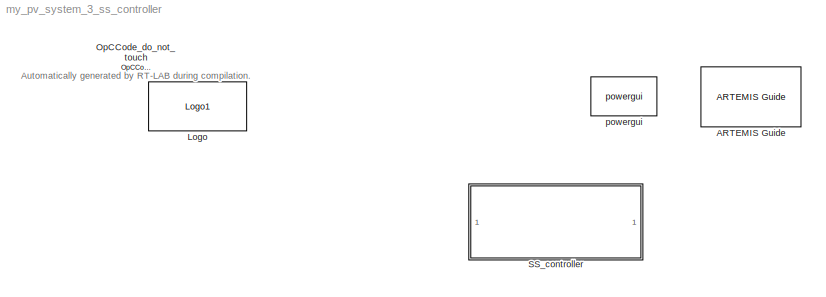
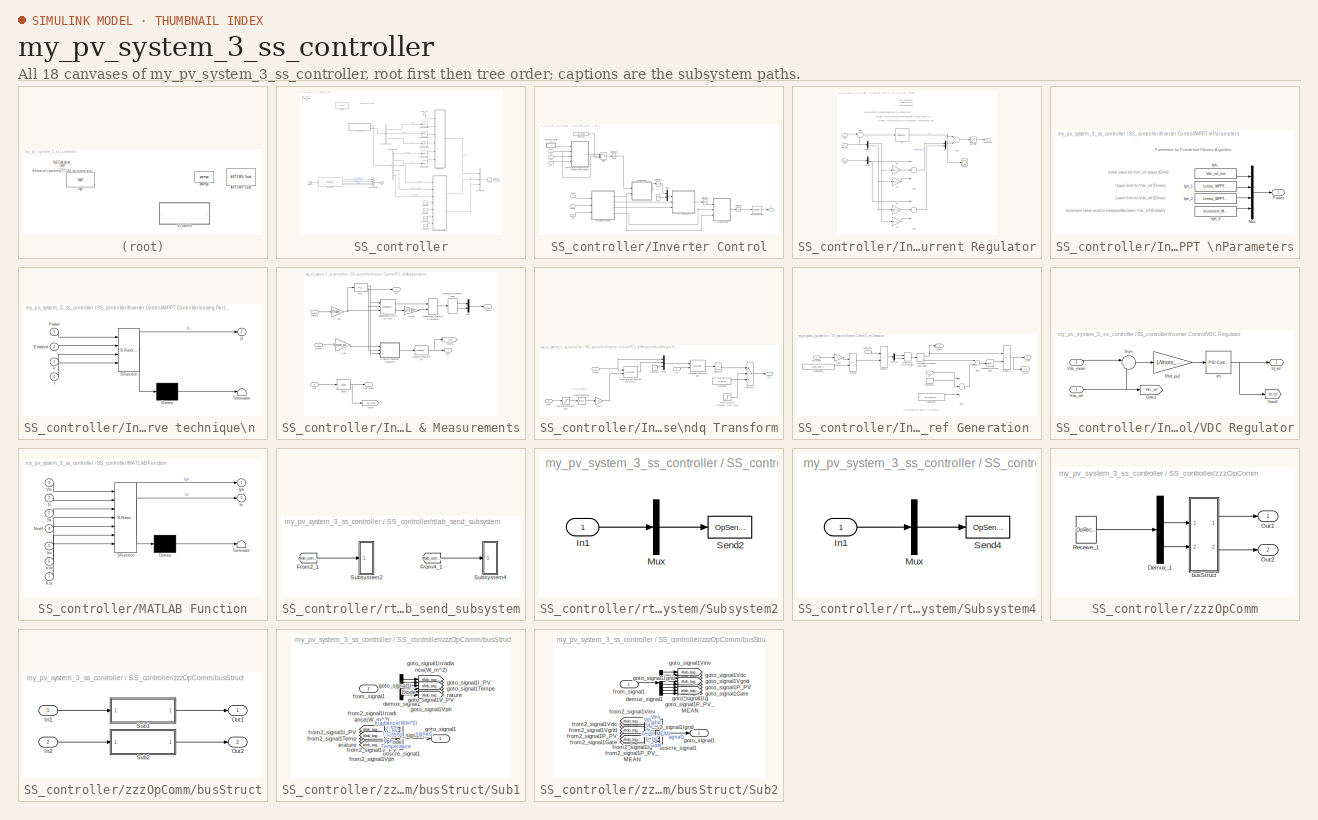
[diagram: thumbnail index - all 18 canvases of the model, root first then tree order]
MODEL my_pv_system_3_ss_controller
KIND model
BLOCK [Reference] ARTEMIS Guide  REF=artemis/ARTEMIS/ARTEMIS Guide
  Description = 5.0_z1
  LF = off
  Ports = []
  RT_fullcomp = off
  SID = 394
  SPSRulesBlock = SPSRules
  SourceBlock = artemis/ARTEMIS/ARTEMIS Guide
  SourceType = ARTEMISmethode
  Tag = FTSSmethode_opal_4hx0r99
  Thy_Impulse = on
  Ts = 50e-6
  ao = on
  ct_mac = off
  ctmm = off
  custom_type = off
  dpl_type = ARTEMiS DPL
  dtc = Off
  dtc_extra = 1
  dtc_opt = normal
  dtc_pied = 0.5
  dtc_sws = normal
  dyna = off
  lin_mov = off
  lock = on
  lsp = [0.001 2]
  nb_perm = 4
  opt = art5
  para = on
  paraExtinctionThy = off
  rlc_type = off
  simtype = off
  spike_skip = Disabled
  ssn = on
  ssn_ImpulseLoopBlockedStateUpdate = 5
  ssn_ext = off
  ssn_impulse = off
  ssn_impulse_loop = 5
  ssn_itvc = off
  ssn_ivic = off
  ssn_mov_iter_number = 5
  ssn_quasimpulse = off
  ssn_solver = Art5 with Backward Euler nodal interface
  ssn_switch_iter_number = 5
  tre = on
BLOCK [Reference] Logo  REF=opal_lib/Logo1
  Ports = []
  SID = 1
  SourceBlock = opal_lib/Logo1
  SourceType = Opal-RT logo
  vide = []
BLOCK [Reference] OpCCode_do_not_touch  REF=opal_lib/Communication/OpCCode
  FunctionWithSeparateData = off
  GeneratePreprocessorConditionals = off
  Ports = []
  SID = 407
  ShowPortLabels = FromPortIcon
  SourceBlock = opal_lib/Communication/OpCCode
  SystemSampleTime = -1
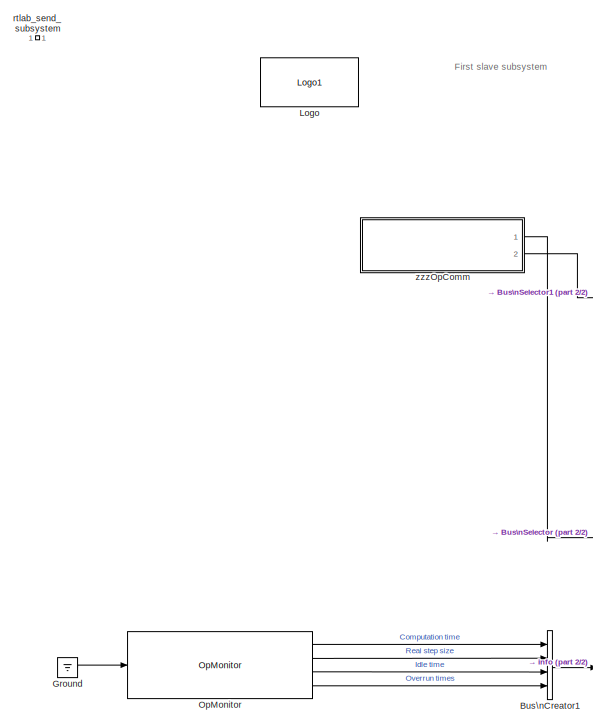
[diagram: SS_controller - part 1/2, middle left region]
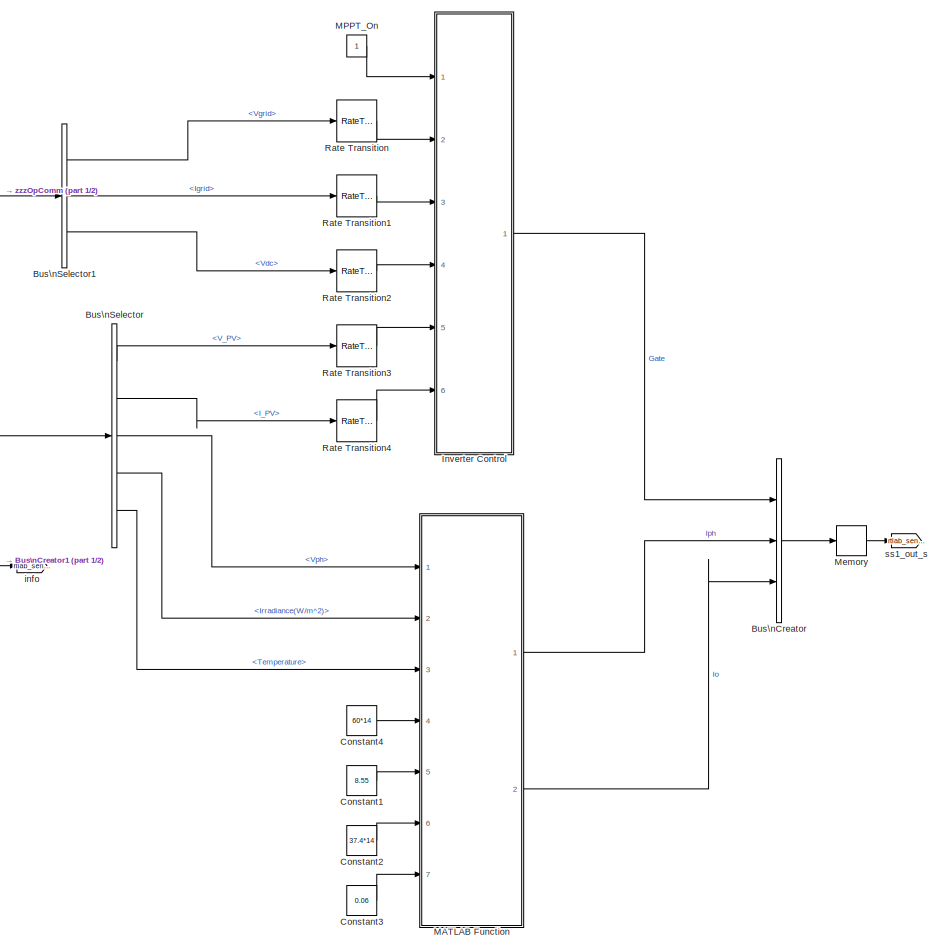
[diagram: SS_controller - part 2/2, right side, full height]
BLOCK [SubSystem] SS_controller
  Ports = []
  RequestExecContextInheritance = off
  SID = 27
BLOCK [BusCreator] SS_controller/Bus\nCreator
  DisplayOption = bar
  Inputs = 3
  Ports = [3, 1]
  SID = 375
BLOCK [BusCreator] SS_controller/Bus\nCreator1
  DisplayOption = bar
  Ports = [4, 1]
  SID = 377
BLOCK [BusSelector] SS_controller/Bus\nSelector
  OutputSignals = V_PV,I_PV,Vph,Irradiance(W/m^2),Temperature
  Ports = [1, 5]
  SID = 359
BLOCK [BusSelector] SS_controller/Bus\nSelector1
  OutputSignals = Vgrid,Igrid,Vdc
  Ports = [1, 3]
  SID = 360
BLOCK [Constant] SS_controller/Constant1
  SID = 122
  Value = 8.55
BLOCK [Constant] SS_controller/Constant2
  SID = 123
  Value = 37.4*14
BLOCK [Constant] SS_controller/Constant3
  SID = 124
  Value = 0.06
BLOCK [Constant] SS_controller/Constant4
  SID = 125
  Value = 60*14
BLOCK [Ground] SS_controller/Ground
  SID = 345
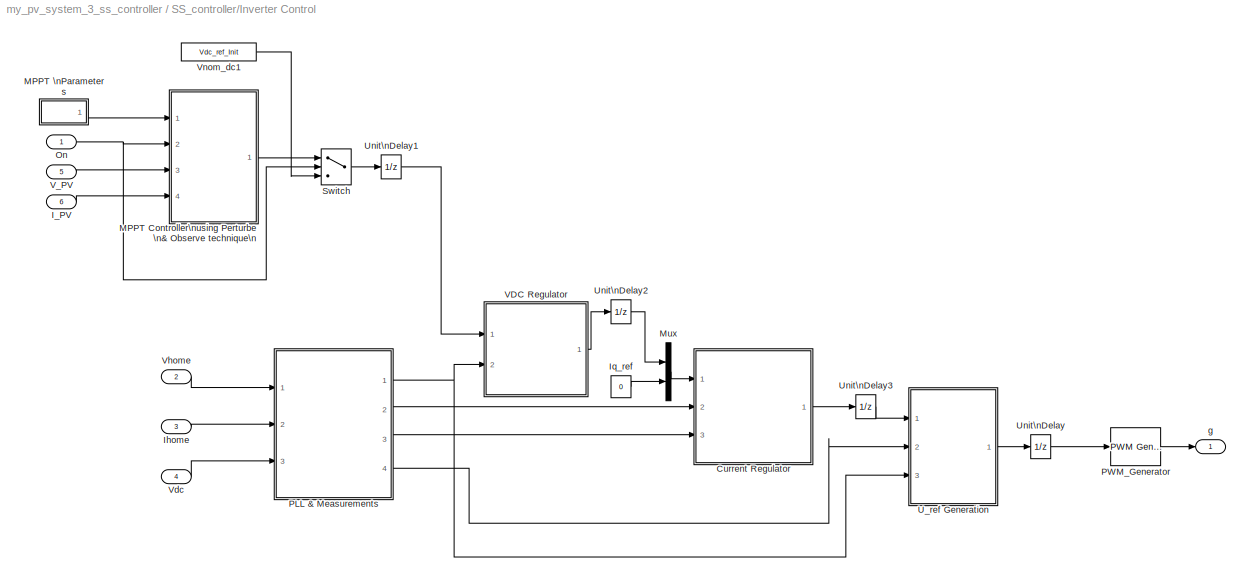
BLOCK [SubSystem] SS_controller/Inverter Control
  Ports = [6, 1]
  RequestExecContextInheritance = off
  SID = 187
BLOCK [SubSystem] SS_controller/Inverter Control/Current Regulator
  Ports = [3, 1]
  RequestExecContextInheritance = off
  SID = 194
BLOCK [Sum] SS_controller/Inverter Control/Current Regulator/Add1
  InputSameDT = off
  Inputs = ++-
  OutDataTypeStr = Inherit: Inherit via internal rule
  Ports = [3, 1]
  SID = 198
  SaturateOnIntegerOverflow = off
BLOCK [Sum] SS_controller/Inverter Control/Current Regulator/Add2
  InputSameDT = off
  OutDataTypeStr = Inherit: Inherit via internal rule
  Ports = [2, 1]
  SID = 199
  SaturateOnIntegerOverflow = off
BLOCK [Sum] SS_controller/Inverter Control/Current Regulator/Add3
  InputSameDT = off
  Inputs = +++
  OutDataTypeStr = Inherit: Inherit via internal rule
  Ports = [3, 1]
  SID = 200
  SaturateOnIntegerOverflow = off
BLOCK [Demux] SS_controller/Inverter Control/Current Regulator/Demux
  DisplayOption = bar
  Outputs = 2
  Ports = [1, 2]
  SID = 201
BLOCK [Demux] SS_controller/Inverter Control/Current Regulator/Demux1
  DisplayOption = bar
  Outputs = 2
  Ports = [1, 2]
  SID = 202
BLOCK [Inport] SS_controller/Inverter Control/Current Regulator/IdIq
  IconDisplay = Port number
  Port = 3
  PortDimensions = 2
  SID = 197
BLOCK [Inport] SS_controller/Inverter Control/Current Regulator/IdIq_ref
  IconDisplay = Port number
  PortDimensions = 2
  SID = 195
BLOCK [Gain] SS_controller/Inverter Control/Current Regulator/Lff
  Gain = RLff(2)
  SID = 203
BLOCK [Gain] SS_controller/Inverter Control/Current Regulator/Lff  
  Gain = RLff(2)
  SID = 204
BLOCK [Mux] SS_controller/Inverter Control/Current Regulator/Mux
  DisplayOption = bar
  Inputs = 2
  Ports = [2, 1]
  SID = 205
BLOCK [Reference] SS_controller/Inverter Control/Current Regulator/PI  REF=simulink/Continuous/PID Controller
  AntiWindupMode = none
  Controller = PI
  D = 0
  DOutDataTypeStr = Inherit: Inherit via internal rule
  DOutMax = []
  DOutMin = []
  DParamDataTypeStr = Inherit: Inherit via internal rule
  DParamMax = []
  DParamMin = []
  DifferentiatorICPrevScaledInput = 0
  DifferentiatorOutDataTypeStr = Inherit: Inherit via internal rule
  DifferentiatorOutMax = []
  DifferentiatorOutMin = []
  ExternalReset = none
  FilterContinuousStateAttributes = ''
  FilterMethod = Forward Euler
  FilterOutDataTypeStr = Inherit: Inherit via internal rule
  FilterOutMax = []
  FilterOutMin = []
  FilterRTWStateStorageClass = Auto
  FilterStateMustResolveToSignalObject = off
  Form = Parallel
  I = Ki_Ireg
  IOutDataTypeStr = Inherit: Inherit via internal rule
  IOutMax = []
  IOutMin = []
  IParamDataTypeStr = Inherit: Inherit via internal rule
  IParamMax = []
  IParamMin = []
  IgnoreLimit = off
  InitialConditionForFilter = 0
  InitialConditionForIntegrator = 0
  InitialConditionSource = internal
  IntegratorContinuousStateAttributes = ''
  IntegratorMethod = Forward Euler
  IntegratorOutDataTypeStr = Inherit: Inherit via internal rule
  IntegratorOutMax = []
  IntegratorOutMin = []
  IntegratorRTWStateStorageClass = Auto
  IntegratorStateMustResolveToSignalObject = off
  Kb = 1
  KbOutDataTypeStr = Inherit: Inherit via internal rule
  KbOutMax = []
  KbOutMin = []
  KbParamDataTypeStr = Inherit: Inherit via internal rule
  KbParamMax = []
  KbParamMin = []
  Kt = 1
  KtOutDataTypeStr = Inherit: Inherit via internal rule
  KtOutMax = []
  KtOutMin = []
  KtParamDataTypeStr = Inherit: Inherit via internal rule
  KtParamMax = []
  KtParamMin = []
  LimitOutput = on
  LinearizeAsGain = off
  LockScale = off
  LowerSaturationLimit = -1.5
  N = 100
  NOutDataTypeStr = Inherit: Inherit via internal rule
  NOutMax = []
  NOutMin = []
  NParamDataTypeStr = Inherit: Inherit via internal rule
  NParamMax = []
  NParamMin = []
  P = Kp_Ireg
  POutDataTypeStr = Inherit: Inherit via internal rule
  POutMax = []
  POutMin = []
  PParamDataTypeStr = Inherit: Inherit via internal rule
  PParamMax = []
  PParamMin = []
  Ports = [1, 1]
  RndMeth = Floor
  SID = 206
  SampleTime = Ts_Control
  SaturateOnIntegerOverflow = off
  SaturationOutDataTypeStr = Inherit: Same as input
  SaturationOutMax = []
  SaturationOutMin = []
  SourceBlock = simulink/Continuous/PID Controller
  SourceType = PID 1dof
  SumAccumDataTypeStr = Inherit: Inherit via internal rule
  SumDAccumDataTypeStr = Inherit: Inherit via internal rule
  SumDOutDataTypeStr = Inherit: Inherit via internal rule
  SumDOutMax = []
  SumDOutMin = []
  SumI1AccumDataTypeStr = Inherit: Inherit via internal rule
  SumI1OutDataTypeStr = Inherit: Inherit via internal rule
  SumI1OutMax = []
  SumI1OutMin = []
  SumI2AccumDataTypeStr = Inherit: Inherit via internal rule
  SumI2OutDataTypeStr = Inherit: Inherit via internal rule
  SumI2OutMax = []
  SumI2OutMin = []
  SumI3AccumDataTypeStr = Inherit: Inherit via internal rule
  SumI3OutDataTypeStr = Inherit: Inherit via internal rule
  SumI3OutMax = []
  SumI3OutMin = []
  SumOutDataTypeStr = Inherit: Inherit via internal rule
  SumOutMax = []
  SumOutMin = []
  TimeDomain = Discrete-time
  TrackingMode = off
  UpperSaturationLimit = 1.5
  UseFilter = on
  ZeroCross = on
BLOCK [Scope] SS_controller/Inverter Control/Current Regulator/PI_Ireg1
  Floating = off
  LimitDataPoints = off
  NumInputPorts = 1
  Ports = [1]
  SID = 207
  ShowLegends = off
  YMax = 0.45
  YMin = -0.25
BLOCK [Gain] SS_controller/Inverter Control/Current Regulator/Rff
  Gain = RLff(1)
  SID = 208
BLOCK [Gain] SS_controller/Inverter Control/Current Regulator/Rff 
  Gain = RLff(1)
  SID = 209
BLOCK [Saturate] SS_controller/Inverter Control/Current Regulator/Saturation
  InputPortMap = u0
  LowerLimit = -1.5
  Ports = [1, 1]
  SID = 210
  UpperLimit = 1.5
BLOCK [Sum] SS_controller/Inverter Control/Current Regulator/Sum
  IconShape = round
  InputSameDT = off
  Inputs = |-+
  OutDataTypeStr = Inherit: Inherit via internal rule
  Ports = [2, 1]
  SID = 211
  SaturateOnIntegerOverflow = off
BLOCK [Inport] SS_controller/Inverter Control/Current Regulator/VdVq
  IconDisplay = Port number
  Port = 2
  PortDimensions = 2
  SID = 196
BLOCK [Outport] SS_controller/Inverter Control/Current Regulator/VdVq_conv
  IconDisplay = Port number
  SID = 212
BLOCK [Inport] SS_controller/Inverter Control/I_PV
  IconDisplay = Port number
  Port = 6
  PortDimensions = 1
  SID = 193
BLOCK [Inport] SS_controller/Inverter Control/Ihome
  IconDisplay = Port number
  Port = 3
  PortDimensions = 1
  SID = 190
BLOCK [Constant] SS_controller/Inverter Control/Iq_ref
  SID = 218
  Value = 0
BLOCK [SubSystem] SS_controller/Inverter Control/MPPT Controller\nusing Perturbe \n& Observe technique\n 
  ErrorFcn = Stateflow.Translate.translate
  PermitHierarchicalResolution = ExplicitOnly
  Ports = [4, 1]
  RequestExecContextInheritance = off
  SFBlockType = MATLAB Function
  SID = 231
  TreatAsAtomicUnit = on
BLOCK [Demux] SS_controller/Inverter Control/MPPT Controller\nusing Perturbe \n& Observe technique\n / Demux 
  Outputs = 1
  Ports = [1, 1]
  SID = 231::127
BLOCK [S-Function] SS_controller/Inverter Control/MPPT Controller\nusing Perturbe \n& Observe technique\n / SFunction 
  EnableBusSupport = on
  FunctionName = sf_sfun
  PortCounts = [4 2]
  Ports = [4, 2]
  SID = 231::126
  Tag = Stateflow S-Function my_pv_system_3_ss_controller 2
BLOCK [Terminator] SS_controller/Inverter Control/MPPT Controller\nusing Perturbe \n& Observe technique\n / Terminator 
  SID = 231::128
BLOCK [Outport] SS_controller/Inverter Control/MPPT Controller\nusing Perturbe \n& Observe technique\n /D
  IconDisplay = Port number
  SID = 231::35
BLOCK [Inport] SS_controller/Inverter Control/MPPT Controller\nusing Perturbe \n& Observe technique\n /Enabled
  IconDisplay = Port number
  Port = 2
  SID = 231::91
BLOCK [Inport] SS_controller/Inverter Control/MPPT Controller\nusing Perturbe \n& Observe technique\n /I
  IconDisplay = Port number
  Port = 4
  SID = 231::1
BLOCK [Inport] SS_controller/Inverter Control/MPPT Controller\nusing Perturbe \n& Observe technique\n /Param
  IconDisplay = Port number
  SID = 231::90
BLOCK [Inport] SS_controller/Inverter Control/MPPT Controller\nusing Perturbe \n& Observe technique\n /V
  IconDisplay = Port number
  Port = 3
  SID = 231::85
BLOCK [SubSystem] SS_controller/Inverter Control/MPPT \nParameters
  Ports = [0, 1]
  RequestExecContextInheritance = off
  SID = 219
BLOCK [Constant] SS_controller/Inverter Control/MPPT \nParameters/Iph_
  SID = 220
  Value = Vdc_ref_Init
BLOCK [Constant] SS_controller/Inverter Control/MPPT \nParameters/Iph_1
  SID = 221
  Value = Limits_MPPT(1)
BLOCK [Constant] SS_controller/Inverter Control/MPPT \nParameters/Iph_2
  SID = 222
  Value = Limits_MPPT(2)
BLOCK [Constant] SS_controller/Inverter Control/MPPT \nParameters/Iph_3
  SID = 223
  Value = Increment_MPPT
BLOCK [Mux] SS_controller/Inverter Control/MPPT \nParameters/Mux
  DisplayOption = bar
  Ports = [4, 1]
  SID = 224
BLOCK [Outport] SS_controller/Inverter Control/MPPT \nParameters/Param
  IconDisplay = Port number
  SID = 225
BLOCK [Mux] SS_controller/Inverter Control/Mux
  DisplayOption = bar
  Inputs = 2
  Ports = [2, 1]
  SID = 232
BLOCK [Inport] SS_controller/Inverter Control/On
  IconDisplay = Port number
  PortDimensions = 1
  SID = 188
BLOCK [SubSystem] SS_controller/Inverter Control/PLL & Measurements
  Ports = [3, 4]
  RequestExecContextInheritance = off
  SID = 233
BLOCK [Gain] SS_controller/Inverter Control/PLL & Measurements/A->pu
  Gain = Vnom_prim/Pnom/sqrt(2)
  SID = 237
BLOCK [ComplexToRealImag] SS_controller/Inverter Control/PLL & Measurements/Complex to\nReal-Imag
  Ports = [1, 2]
  SID = 238
BLOCK [Reference] SS_controller/Inverter Control/PLL & Measurements/Fundamental\n(PLL-Driven)  REF=powerlib_meascontrol/Measurements/Fundamental\n(PLL-Driven)
  Finit = Fnom
  Fmin = 45
  InInit = [1, 0]
  Ports = [3, 2]
  SID = 239
  SourceBlock = powerlib_meascontrol/Measurements/Fundamental\n(PLL-Driven)
  SourceType = Fundamental (PLL-Driven)
  Ts = Ts_Control
BLOCK [Goto] SS_controller/Inverter Control/PLL & Measurements/Goto1
  GotoTag = Vdc_mean
  SID = 240
  TagVisibility = global
BLOCK [Goto] SS_controller/Inverter Control/PLL & Measurements/Goto3
  GotoTag = IdIq
  SID = 241
  TagVisibility = global
BLOCK [Outport] SS_controller/Inverter Control/PLL & Measurements/IdIq
  IconDisplay = Port number
  Port = 3
  SID = 268
BLOCK [Inport] SS_controller/Inverter Control/PLL & Measurements/Ihome
  IconDisplay = Port number
  Port = 2
  SID = 235
BLOCK [MagnitudeAngleToComplex] SS_controller/Inverter Control/PLL & Measurements/Magnitude-Angle\nto Complex
  Ports = [2, 1]
  SID = 242
BLOCK [Reference] SS_controller/Inverter Control/PLL & Measurements/Mean  REF=powerlib_meascontrol/Measurements/Mean
  Freq = Fnom
  Ports = [1, 1]
  SID = 243
  SourceBlock = powerlib_meascontrol/Measurements/Mean
  SourceType = Mean
  Ts = Ts_Control
  Vinit = Vdc_ref_Init
BLOCK [Mux] SS_controller/Inverter Control/PLL & Measurements/Mux
  DisplayOption = bar
  Inputs = 2
  Ports = [2, 1]
  SID = 244
BLOCK [Reference] SS_controller/Inverter Control/PLL & Measurements/PLL  REF=powerlib_meascontrol/PLL/PLL
  AGC = on
  FilterCutOffFreq = 25
  Fmin = 40
  MaxRateChangeFreq = 12
  ParK = [180, 3200, 1]
  Par_Init = [0, Fnom]
  Ports = [1, 2]
  SID = 245
  SourceBlock = powerlib_meascontrol/PLL/PLL
  SourceType = PLL
  TcD = 1e-4
  Ts = Ts_Control
BLOCK [Reference] SS_controller/Inverter Control/PLL & Measurements/Second-Order\nFilter  REF=powerlib_meascontrol/Filters/Second-Order\nFilter
  FilterType = Lowpass
  Fo = 2000
  FreqRange = [0, 500, 1]
  Initialize = on
  PlotResponse = off
  Ports = [1, 1]
  SID = 246
  SourceBlock = powerlib_meascontrol/Filters/Second-Order\nFilter
  SourceType = Second-Order Filter
  Ts = Ts_Control
  Vac_Init = [0,  0,  60;0,0,60]
  Vdc_Init = [0.9 0]
  Zeta = 1
BLOCK [SubSystem] SS_controller/Inverter Control/PLL & Measurements/Single-Phase\ndq Transform
  Ports = [3, 1]
  RequestExecContextInheritance = off
  SID = 247
BLOCK [Reference] SS_controller/Inverter Control/PLL & Measurements/Single-Phase\ndq Transform/Alpha-Beta-Zero\nto dq0  REF=powerlib_meascontrol/Transformations/Alpha-Beta-Zero\nto dq0
  Alignment = 90 degrees behind phase A axis
  Ports = [2, 1]
  SID = 251
  SourceBlock = powerlib_meascontrol/Transformations/Alpha-Beta-Zero\nto dq0
  SourceType = Alpha-Beta-Zero to dq0 Transformation
BLOCK [Constant] SS_controller/Inverter Control/PLL & Measurements/Single-Phase\ndq Transform/Constant
  SID = 252
  Value = [0.92 0]
BLOCK [Constant] SS_controller/Inverter Control/PLL & Measurements/Single-Phase\ndq Transform/Constant1
  SID = 253
  Value = 0
BLOCK [Reference] SS_controller/Inverter Control/PLL & Measurements/Single-Phase\ndq Transform/Discrete Variable\nTime Delay  REF=powerlib_meascontrol/Additional Components/Discrete Variable\nTime Delay
  DFT = on
  InitialValue = 0
  MaxDelay = 1
  Ports = [2, 1]
  SID = 254
  SourceBlock = powerlib_meascontrol/Additional Components/Discrete Variable\nTime Delay
  SourceType = Discrete Variable Time Delay
  Ts = Ts_Control
BLOCK [Step] SS_controller/Inverter Control/PLL & Measurements/Single-Phase\ndq Transform/First cycle of simulation\nId=0.92, Iq=0
  SID = 255
  SampleTime = Ts_Control
  Time = 1/Fnom
BLOCK [Inport] SS_controller/Inverter Control/PLL & Measurements/Single-Phase\ndq Transform/Freq
  IconDisplay = Port number
  Port = 3
  SID = 250
BLOCK [Gain] SS_controller/Inverter Control/PLL & Measurements/Single-Phase\ndq Transform/Gain
  Gain = 1/4
  OutDataTypeStr = Inherit: Inherit via internal rule
  ParamDataTypeStr = Inherit: Inherit via internal rule
  SID = 256
  SaturateOnIntegerOverflow = off
BLOCK [Outport] SS_controller/Inverter Control/PLL & Measurements/Single-Phase\ndq Transform/Idq
  IconDisplay = Port number
  SID = 262
BLOCK [Inport] SS_controller/Inverter Control/PLL & Measurements/Single-Phase\ndq Transform/Imeas
  IconDisplay = Port number
  SID = 248
BLOCK [Math] SS_controller/Inverter Control/PLL & Measurements/Single-Phase\ndq Transform/Math\nFunction
  Operator = reciprocal
  Ports = [1, 1]
  SID = 257
BLOCK [Mux] SS_controller/Inverter Control/PLL & Measurements/Single-Phase\ndq Transform/Mux1
  DisplayOption = bar
  Inputs = 3
  Ports = [3, 1]
  SID = 258
BLOCK [Selector] SS_controller/Inverter Control/PLL & Measurements/Single-Phase\ndq Transform/Selector
  Indices = [1 2]
  InputPortWidth = 3
  Ports = [1, 1]
  SID = 259
BLOCK [Switch] SS_controller/Inverter Control/PLL & Measurements/Single-Phase\ndq Transform/Switch
  Criteria = u2 ~= 0
  InputSameDT = off
  SID = 260
  SaturateOnIntegerOverflow = off
BLOCK [Saturate] SS_controller/Inverter Control/PLL & Measurements/Single-Phase\ndq Transform/avoid division\nby zero
  InputPortMap = u0
  LowerLimit = 40
  Ports = [1, 1]
  SID = 261
  UpperLimit = 70
BLOCK [Inport] SS_controller/Inverter Control/PLL & Measurements/Single-Phase\ndq Transform/wt
  IconDisplay = Port number
  Port = 2
  SID = 249
BLOCK [Gain] SS_controller/Inverter Control/PLL & Measurements/V->pu
  Gain = 1/(Vnom_prim*sqrt(2))
  SID = 264
BLOCK [Outport] SS_controller/Inverter Control/PLL & Measurements/VdVq
  IconDisplay = Port number
  Port = 2
  SID = 267
BLOCK [Inport] SS_controller/Inverter Control/PLL & Measurements/Vdc
  IconDisplay = Port number
  Port = 3
  SID = 236
BLOCK [Outport] SS_controller/Inverter Control/PLL & Measurements/Vdc_mean
  IconDisplay = Port number
  SID = 266
BLOCK [Inport] SS_controller/Inverter Control/PLL & Measurements/Vhome
  IconDisplay = Port number
  SID = 234
BLOCK [Gain] SS_controller/Inverter Control/PLL & Measurements/to-rad
  Gain = pi/180
  OutDataTypeStr = Inherit: Inherit via internal rule
  ParamDataTypeStr = Inherit: Inherit via internal rule
  SID = 265
  SaturateOnIntegerOverflow = off
BLOCK [Outport] SS_controller/Inverter Control/PLL & Measurements/wt
  IconDisplay = Port number
  Port = 4
  SID = 269
BLOCK [Reference] SS_controller/Inverter Control/PWM_Generator  REF=powerlib_meascontrol/Pulse & Signal\nGenerators/PWM Generator\n(2-Level)
  AttributesFormatString = %<ModulatorType>
  Fc = Fc
  Freq = 60
  MinMax = [ -1  1 ]
  ModulatingSignals = off
  ModulatorMode = Unsynchronized
  ModulatorType = Single-phase full-bridge - Bipolar modulation (4 pulses)
  Pc = 90
  Phase = 0
  Ports = [1, 1]
  SID = 270
  SamplingTechnique = Natural
  ShowCarrierOutport = off
  SourceBlock = powerlib_meascontrol/Pulse & Signal\nGenerators/PWM Generator\n(2-Level)
  SourceType = PWM Generator (2-Level)
  Ts = Ts_PWMgenerator
  m = 0.8
  nF = 27
BLOCK [Switch] SS_controller/Inverter Control/Switch
  Criteria = u2 ~= 0
  InputSameDT = off
  SID = 271
  SaturateOnIntegerOverflow = off
BLOCK [SubSystem] SS_controller/Inverter Control/U_ref Generation 
  Ports = [3, 1]
  RequestExecContextInheritance = off
  SID = 272
BLOCK [Sum] SS_controller/Inverter Control/U_ref Generation /Add1
  InputSameDT = off
  Inputs = +++
  OutDataTypeStr = Inherit: Inherit via internal rule
  Ports = [3, 1]
  SID = 276
  SaturateOnIntegerOverflow = off
BLOCK [Sum] SS_controller/Inverter Control/U_ref Generation /Add2
  InputSameDT = off
  OutDataTypeStr = Inherit: Inherit via internal rule
  Ports = [2, 1]
  SID = 277
  SaturateOnIntegerOverflow = off
BLOCK [ComplexToMagnitudeAngle] SS_controller/Inverter Control/U_ref Generation /Complex to\nMagnitude-Angle
  Ports = [1, 2]
  SID = 278
BLOCK [Constant] SS_controller/Inverter Control/U_ref Generation /Constant2
  SID = 279
  Value = 0
BLOCK [Constant] SS_controller/Inverter Control/U_ref Generation /Constant3
  SID = 280
  Value = Vnom_prim*sqrt(2)
BLOCK [Constant] SS_controller/Inverter Control/U_ref Generation /Constant4
  SID = 281
  Value = Ts_Control*Fnom*(2*pi)
BLOCK [Demux] SS_controller/Inverter Control/U_ref Generation /Demux1
  DisplayOption = bar
  Outputs = 2
  Ports = [1, 2]
  SID = 282
BLOCK [Gain] SS_controller/Inverter Control/U_ref Generation /Gain1
  OutDataTypeStr = Inherit: Inherit via internal rule
  ParamDataTypeStr = Inherit: Inherit via internal rule
  SID = 283
  SaturateOnIntegerOverflow = off
BLOCK [Goto] SS_controller/Inverter Control/U_ref Generation /Goto1
  GotoTag = m
  SID = 284
  TagVisibility = global
BLOCK [Goto] SS_controller/Inverter Control/U_ref Generation /Goto2
  GotoTag = Uref
  SID = 285
  TagVisibility = global
BLOCK [Product] SS_controller/Inverter Control/U_ref Generation /Product
  InputSameDT = off
  Inputs = */
  OutDataTypeStr = Inherit: Inherit via internal rule
  Ports = [2, 1]
  SID = 286
  SaturateOnIntegerOverflow = off
BLOCK [Product] SS_controller/Inverter Control/U_ref Generation /Product1
  InputSameDT = off
  Inputs = */
  OutDataTypeStr = Inherit: Inherit via internal rule
  Ports = [2, 1]
  SID = 287
  SaturateOnIntegerOverflow = off
BLOCK [Product] SS_controller/Inverter Control/U_ref Generation /Product2
  InputSameDT = off
  Inputs = **
  OutDataTypeStr = Inherit: Inherit via internal rule
  Ports = [2, 1]
  SID = 288
  SaturateOnIntegerOverflow = off
BLOCK [RealImagToComplex] SS_controller/Inverter Control/U_ref Generation /Real-Imag to\nComplex
  Ports = [2, 1]
  SID = 289
BLOCK [Trigonometry] SS_controller/Inverter Control/U_ref Generation /Trigonometric\nFunction
  Ports = [1, 1]
  SID = 290
BLOCK [Outport] SS_controller/Inverter Control/U_ref Generation /Uref
  IconDisplay = Port number
  SID = 291
BLOCK [Inport] SS_controller/Inverter Control/U_ref Generation /VdVq_conv
  IconDisplay = Port number
  SID = 273
BLOCK [Inport] SS_controller/Inverter Control/U_ref Generation /Vdc_mean
  IconDisplay = Port number
  Port = 3
  SID = 275
BLOCK [Inport] SS_controller/Inverter Control/U_ref Generation /wt
  IconDisplay = Port number
  Port = 2
  SID = 274
BLOCK [UnitDelay] SS_controller/Inverter Control/Unit\nDelay
  InitialCondition = 0.1684
  InputProcessing = Elements as channels (sample based)
  SID = 293
  SampleTime = Ts_Control
BLOCK [UnitDelay] SS_controller/Inverter Control/Unit\nDelay1
  InputProcessing = Elements as channels (sample based)
  SID = 332
  SampleTime = Ts_Control
BLOCK [UnitDelay] SS_controller/Inverter Control/Unit\nDelay2
  InputProcessing = Elements as channels (sample based)
  SID = 333
  SampleTime = Ts_Control
BLOCK [UnitDelay] SS_controller/Inverter Control/Unit\nDelay3
  InputProcessing = Elements as channels (sample based)
  SID = 334
  SampleTime = Ts_Control
BLOCK [SubSystem] SS_controller/Inverter Control/VDC Regulator
  Ports = [2, 1]
  RequestExecContextInheritance = off
  SID = 294
BLOCK [Goto] SS_controller/Inverter Control/VDC Regulator/Goto1
  GotoTag = Vdc_ref
  SID = 297
  TagVisibility = global
BLOCK [Goto] SS_controller/Inverter Control/VDC Regulator/Goto5
  GotoTag = Id_ref
  SID = 298
  TagVisibility = global
BLOCK [Outport] SS_controller/Inverter Control/VDC Regulator/Id_ref
  IconDisplay = Port number
  InitialOutput = 0
  SID = 302
BLOCK [Reference] SS_controller/Inverter Control/VDC Regulator/PI  REF=simulink/Continuous/PID Controller
  AntiWindupMode = none
  Controller = PI
  D = 0
  DOutDataTypeStr = Inherit: Inherit via internal rule
  DOutMax = []
  DOutMin = []
  DParamDataTypeStr = Inherit: Inherit via internal rule
  DParamMax = []
  DParamMin = []
  DifferentiatorICPrevScaledInput = 0
  DifferentiatorOutDataTypeStr = Inherit: Inherit via internal rule
  DifferentiatorOutMax = []
  DifferentiatorOutMin = []
  ExternalReset = none
  FilterContinuousStateAttributes = ''
  FilterMethod = Forward Euler
  FilterOutDataTypeStr = Inherit: Inherit via internal rule
  FilterOutMax = []
  FilterOutMin = []
  FilterRTWStateStorageClass = Auto
  FilterStateMustResolveToSignalObject = off
  Form = Parallel
  I = Ki_VDCreg
  IOutDataTypeStr = Inherit: Inherit via internal rule
  IOutMax = []
  IOutMin = []
  IParamDataTypeStr = Inherit: Inherit via internal rule
  IParamMax = []
  IParamMin = []
  IgnoreLimit = off
  InitialConditionForFilter = 0
  InitialConditionForIntegrator = 0.9226
  InitialConditionSource = internal
  IntegratorContinuousStateAttributes = ''
  IntegratorMethod = Trapezoidal
  IntegratorOutDataTypeStr = Inherit: Inherit via internal rule
  IntegratorOutMax = []
  IntegratorOutMin = []
  IntegratorRTWStateStorageClass = Auto
  IntegratorStateMustResolveToSignalObject = off
  Kb = 1
  KbOutDataTypeStr = Inherit: Inherit via internal rule
  KbOutMax = []
  KbOutMin = []
  KbParamDataTypeStr = Inherit: Inherit via internal rule
  KbParamMax = []
  KbParamMin = []
  Kt = 1
  KtOutDataTypeStr = Inherit: Inherit via internal rule
  KtOutMax = []
  KtOutMin = []
  KtParamDataTypeStr = Inherit: Inherit via internal rule
  KtParamMax = []
  KtParamMin = []
  LimitOutput = on
  LinearizeAsGain = off
  LockScale = off
  LowerSaturationLimit = -1.5
  N = 100
  NOutDataTypeStr = Inherit: Inherit via internal rule
  NOutMax = []
  NOutMin = []
  NParamDataTypeStr = Inherit: Inherit via internal rule
  NParamMax = []
  NParamMin = []
  P = Kp_VDCreg
  POutDataTypeStr = Inherit: Inherit via internal rule
  POutMax = []
  POutMin = []
  PParamDataTypeStr = Inherit: Inherit via internal rule
  PParamMax = []
  PParamMin = []
  Ports = [1, 1]
  RndMeth = Floor
  SID = 299
  SampleTime = Ts_Control
  SaturateOnIntegerOverflow = off
  SaturationOutDataTypeStr = Inherit: Same as input
  SaturationOutMax = []
  SaturationOutMin = []
  SourceBlock = simulink/Continuous/PID Controller
  SourceType = PID 1dof
  SumAccumDataTypeStr = Inherit: Inherit via internal rule
  SumDAccumDataTypeStr = Inherit: Inherit via internal rule
  SumDOutDataTypeStr = Inherit: Inherit via internal rule
  SumDOutMax = []
  SumDOutMin = []
  SumI1AccumDataTypeStr = Inherit: Inherit via internal rule
  SumI1OutDataTypeStr = Inherit: Inherit via internal rule
  SumI1OutMax = []
  SumI1OutMin = []
  SumI2AccumDataTypeStr = Inherit: Inherit via internal rule
  SumI2OutDataTypeStr = Inherit: Inherit via internal rule
  SumI2OutMax = []
  SumI2OutMin = []
  SumI3AccumDataTypeStr = Inherit: Inherit via internal rule
  SumI3OutDataTypeStr = Inherit: Inherit via internal rule
  SumI3OutMax = []
  SumI3OutMin = []
  SumOutDataTypeStr = Inherit: Inherit via internal rule
  SumOutMax = []
  SumOutMin = []
  TimeDomain = Discrete-time
  TrackingMode = off
  UpperSaturationLimit = 1.5
  UseFilter = on
  ZeroCross = on
BLOCK [Gain] SS_controller/Inverter Control/VDC Regulator/Rtot_pu2
  Gain = 1/Vnom_dc
  SID = 300
BLOCK [Sum] SS_controller/Inverter Control/VDC Regulator/Sum
  IconShape = round
  InputSameDT = off
  Inputs = |+-
  OutDataTypeStr = Inherit: Inherit via internal rule
  Ports = [2, 1]
  SID = 301
  SaturateOnIntegerOverflow = off
BLOCK [Inport] SS_controller/Inverter Control/VDC Regulator/Vdc_mean
  IconDisplay = Port number
  Port = 2
  PortDimensions = 1
  SID = 296
BLOCK [Inport] SS_controller/Inverter Control/VDC Regulator/Vdc_ref
  IconDisplay = Port number
  PortDimensions = 1
  SID = 295
BLOCK [Inport] SS_controller/Inverter Control/V_PV
  IconDisplay = Port number
  Port = 5
  PortDimensions = 1
  SID = 192
BLOCK [Inport] SS_controller/Inverter Control/Vdc
  IconDisplay = Port number
  Port = 4
  PortDimensions = 1
  SID = 191
BLOCK [Inport] SS_controller/Inverter Control/Vhome
  IconDisplay = Port number
  Port = 2
  PortDimensions = 1
  SID = 189
BLOCK [Constant] SS_controller/Inverter Control/Vnom_dc1
  SID = 303
  Value = Vdc_ref_Init
BLOCK [Outport] SS_controller/Inverter Control/g
  IconDisplay = Port number
  SID = 304
BLOCK [Reference] SS_controller/Logo  REF=opal_lib/Logo1
  Ports = []
  SID = 29
  SourceBlock = opal_lib/Logo1
  SourceType = Opal-RT logo
  vide = []
BLOCK [SubSystem] SS_controller/MATLAB Function
  ErrorFcn = Stateflow.Translate.translate
  PermitHierarchicalResolution = ExplicitOnly
  Ports = [7, 2]
  RequestExecContextInheritance = off
  SFBlockType = MATLAB Function
  SID = 128
  TreatAsAtomicUnit = on
BLOCK [Demux] SS_controller/MATLAB Function/ Demux 
  Outputs = 1
  Ports = [1, 1]
  SID = 128::17
BLOCK [S-Function] SS_controller/MATLAB Function/ SFunction 
  EnableBusSupport = on
  FunctionName = sf_sfun
  PortCounts = [7 3]
  Ports = [7, 3]
  SID = 128::16
  Tag = Stateflow S-Function my_pv_system_3_ss_controller 1
BLOCK [Terminator] SS_controller/MATLAB Function/ Terminator 
  SID = 128::18
BLOCK [Inport] SS_controller/MATLAB Function/G
  IconDisplay = Port number
  Port = 2
  SID = 128::19
BLOCK [Outport] SS_controller/MATLAB Function/Io
  IconDisplay = Port number
  Port = 2
  SID = 128::28
BLOCK [Outport] SS_controller/MATLAB Function/Iph
  IconDisplay = Port number
  SID = 128::5
BLOCK [Inport] SS_controller/MATLAB Function/Isc
  IconDisplay = Port number
  Port = 5
  SID = 128::22
BLOCK [Inport] SS_controller/MATLAB Function/Ksc
  IconDisplay = Port number
  Port = 7
  SID = 128::24
BLOCK [Inport] SS_controller/MATLAB Function/Ncell
  IconDisplay = Port number
  Port = 4
  SID = 128::21
BLOCK [Inport] SS_controller/MATLAB Function/Ta
  IconDisplay = Port number
  Port = 3
  SID = 128::20
BLOCK [Inport] SS_controller/MATLAB Function/Vb
  IconDisplay = Port number
  SID = 128::29
BLOCK [Inport] SS_controller/MATLAB Function/Voc
  IconDisplay = Port number
  Port = 6
  SID = 128::23
BLOCK [Constant] SS_controller/MPPT_On
  SID = 305
BLOCK [Memory] SS_controller/Memory
  InheritSampleTime = on
  SID = 30
BLOCK [Reference] SS_controller/OpMonitor  REF=rtlab/Monitoring/OpMonitor
  Ports = [1, 4]
  SID = 347
  SourceBlock = rtlab/Monitoring/OpMonitor
  SourceType = OpMonitor
  compute_time = on
  idle_time = on
  nb_overruns = on
  real_step = on
  user_name = my_event_name,another_event_name
  user_time = off
BLOCK [RateTransition] SS_controller/Rate Transition
  SID = 307
BLOCK [RateTransition] SS_controller/Rate Transition1
  SID = 308
BLOCK [RateTransition] SS_controller/Rate Transition2
  SID = 309
BLOCK [RateTransition] SS_controller/Rate Transition3
  SID = 310
BLOCK [RateTransition] SS_controller/Rate Transition4
  SID = 311
BLOCK [Goto] SS_controller/info
  GotoTag = rtlab_send_2
  SID = 516
  TagVisibility = global
BLOCK [SubSystem] SS_controller/rtlab_send_subsystem
  Ports = []
  Priority = -100
  RequestExecContextInheritance = off
  SID = 504
BLOCK [From] SS_controller/rtlab_send_subsystem/From2_1
  GotoTag = rtlab_send_2
  SID = 508
BLOCK [From] SS_controller/rtlab_send_subsystem/From4_1
  GotoTag = rtlab_send_1
  SID = 513
BLOCK [SubSystem] SS_controller/rtlab_send_subsystem/Subsystem2
  Ports = [1]
  RequestExecContextInheritance = off
  SID = 505
BLOCK [Inport] SS_controller/rtlab_send_subsystem/Subsystem2/In1
  IconDisplay = Port number
  SID = 509
BLOCK [Mux] SS_controller/rtlab_send_subsystem/Subsystem2/Mux
  Inputs = 1
  Ports = [1, 1]
  SID = 506
BLOCK [Reference] SS_controller/rtlab_send_subsystem/Subsystem2/Send2  REF=opal_lib/Communication/OpSendToNT
  Acqu_group = 2
  Ports = [1]
  SID = 507
  SourceBlock = opal_lib/Communication/OpSendToNT
  SourceType = OPAL Send Icon
BLOCK [SubSystem] SS_controller/rtlab_send_subsystem/Subsystem4
  Ports = [1]
  Priority = -200000
  RequestExecContextInheritance = off
  SID = 510
  TreatAsAtomicUnit = on
BLOCK [Inport] SS_controller/rtlab_send_subsystem/Subsystem4/In1
  IconDisplay = Port number
  SID = 514
BLOCK [Mux] SS_controller/rtlab_send_subsystem/Subsystem4/Mux
  Inputs = 1
  Ports = [1, 1]
  SID = 511
BLOCK [Reference] SS_controller/rtlab_send_subsystem/Subsystem4/Send4  REF=opal_lib/Communication/OpSend_rt
  Ports = [1]
  SID = 512
  SourceBlock = opal_lib/Communication/OpSend_rt
  SourceType = OPAL Send_rt Icon
  dest = 1
  priority2 = 0
  st = 5e-05
BLOCK [Goto] SS_controller/ss1_out_s
  GotoTag = rtlab_send_1
  SID = 515
  TagVisibility = global
BLOCK [SubSystem] SS_controller/zzzOpComm
  Ports = [0, 2]
  RequestExecContextInheritance = off
  SID = 456
BLOCK [Demux] SS_controller/zzzOpComm/Demux_1
  Outputs = [6  11]
  Ports = [1, 2]
  SID = 457
BLOCK [Outport] SS_controller/zzzOpComm/Out1
  IconDisplay = Port number
  SID = 502
BLOCK [Outport] SS_controller/zzzOpComm/Out2
  IconDisplay = Port number
  Port = 2
  SID = 503
BLOCK [Reference] SS_controller/zzzOpComm/Receive_1  REF=opal_lib/Communication/OpRec_rt
  Data_width = 17
  Ports = [0, 1]
  SID = 458
  SourceBlock = opal_lib/Communication/OpRec_rt
  SourceType = OPAL Recv_rt Icon
  src = 1
  st = 5e-05
BLOCK [SubSystem] SS_controller/zzzOpComm/busStruct
  Ports = [2, 2]
  RequestExecContextInheritance = off
  SID = 459
BLOCK [Inport] SS_controller/zzzOpComm/busStruct/In1
  IconDisplay = Port number
  SID = 460
BLOCK [Inport] SS_controller/zzzOpComm/busStruct/In2
  IconDisplay = Port number
  Port = 2
  SID = 461
BLOCK [Outport] SS_controller/zzzOpComm/busStruct/Out1
  IconDisplay = Port number
  SID = 500
BLOCK [Outport] SS_controller/zzzOpComm/busStruct/Out2
  IconDisplay = Port number
  Port = 2
  SID = 501
BLOCK [SubSystem] SS_controller/zzzOpComm/busStruct/Sub1
  Ports = [1, 1]
  RequestExecContextInheritance = off
  SID = 462
BLOCK [BusCreator] SS_controller/zzzOpComm/busStruct/Sub1/buscre_signal1
  Inputs = 6
  Ports = [6, 1]
  SID = 464
BLOCK [Demux] SS_controller/zzzOpComm/busStruct/Sub1/demux_signal1
  Outputs = [1  1  1  1  1  1]
  Ports = [1, 6]
  SID = 465
BLOCK [From] SS_controller/zzzOpComm/busStruct/Sub1/from2_signal1I_Diode
  GotoTag = rtlab_tag_4
  SID = 466
BLOCK [From] SS_controller/zzzOpComm/busStruct/Sub1/from2_signal1I_PV
  GotoTag = rtlab_tag_2
  SID = 467
BLOCK [From] SS_controller/zzzOpComm/busStruct/Sub1/from2_signal1Irradiance(W_m^2)
  GotoTag = rtlab_tag_1
  SID = 468
BLOCK [From] SS_controller/zzzOpComm/busStruct/Sub1/from2_signal1Temperature
  GotoTag = rtlab_tag_5
  SID = 469
BLOCK [From] SS_controller/zzzOpComm/busStruct/Sub1/from2_signal1V_PV
  GotoTag = rtlab_tag_3
  SID = 470
BLOCK [From] SS_controller/zzzOpComm/busStruct/Sub1/from2_signal1Vph
  GotoTag = rtlab_tag_6
  SID = 471
BLOCK [Inport] SS_controller/zzzOpComm/busStruct/Sub1/from_signal1
  IconDisplay = Port number
  SID = 463
BLOCK [Outport] SS_controller/zzzOpComm/busStruct/Sub1/goto_signal1
  IconDisplay = Port number
  SID = 478
BLOCK [Goto] SS_controller/zzzOpComm/busStruct/Sub1/goto_signal1I_Diode
  GotoTag = rtlab_tag_4
  SID = 472
BLOCK [Goto] SS_controller/zzzOpComm/busStruct/Sub1/goto_signal1I_PV
  GotoTag = rtlab_tag_2
  SID = 473
BLOCK [Goto] SS_controller/zzzOpComm/busStruct/Sub1/goto_signal1Irradiance(W_m^2)
  GotoTag = rtlab_tag_1
  SID = 474
BLOCK [Goto] SS_controller/zzzOpComm/busStruct/Sub1/goto_signal1Temperature
  GotoTag = rtlab_tag_5
  SID = 475
BLOCK [Goto] SS_controller/zzzOpComm/busStruct/Sub1/goto_signal1V_PV
  GotoTag = rtlab_tag_3
  SID = 476
BLOCK [Goto] SS_controller/zzzOpComm/busStruct/Sub1/goto_signal1Vph
  GotoTag = rtlab_tag_6
  SID = 477
BLOCK [SubSystem] SS_controller/zzzOpComm/busStruct/Sub2
  Ports = [1, 1]
  RequestExecContextInheritance = off
  SID = 479
BLOCK [BusCreator] SS_controller/zzzOpComm/busStruct/Sub2/buscre_signal1
  Inputs = 8
  Ports = [8, 1]
  SID = 481
BLOCK [Demux] SS_controller/zzzOpComm/busStruct/Sub2/demux_signal1
  Outputs = [1  1  1  1  1  1  1  4]
  Ports = [1, 8]
  SID = 482
BLOCK [From] SS_controller/zzzOpComm/busStruct/Sub2/from2_signal1Gate
  GotoTag = rtlab_tag_8
  SID = 483
BLOCK [From] SS_controller/zzzOpComm/busStruct/Sub2/from2_signal1Ig
  GotoTag = rtlab_tag_5
  SID = 484
BLOCK [From] SS_controller/zzzOpComm/busStruct/Sub2/from2_signal1Igrid
  GotoTag = rtlab_tag_3
  SID = 485
BLOCK [From] SS_controller/zzzOpComm/busStruct/Sub2/from2_signal1P_PV
  GotoTag = rtlab_tag_6
  SID = 486
BLOCK [From] SS_controller/zzzOpComm/busStruct/Sub2/from2_signal1P_PV_MEAN
  GotoTag = rtlab_tag_7
  SID = 487
BLOCK [From] SS_controller/zzzOpComm/busStruct/Sub2/from2_signal1Vdc
  GotoTag = rtlab_tag_2
  SID = 488
BLOCK [From] SS_controller/zzzOpComm/busStruct/Sub2/from2_signal1Vgrid
  GotoTag = rtlab_tag_4
  SID = 489
BLOCK [From] SS_controller/zzzOpComm/busStruct/Sub2/from2_signal1Vinv
  GotoTag = rtlab_tag_1
  SID = 490
BLOCK [Inport] SS_controller/zzzOpComm/busStruct/Sub2/from_signal1
  IconDisplay = Port number
  SID = 480
BLOCK [Outport] SS_controller/zzzOpComm/busStruct/Sub2/goto_signal1
  IconDisplay = Port number
  SID = 499
BLOCK [Goto] SS_controller/zzzOpComm/busStruct/Sub2/goto_signal1Gate
  GotoTag = rtlab_tag_8
  SID = 491
BLOCK [Goto] SS_controller/zzzOpComm/busStruct/Sub2/goto_signal1Ig
  GotoTag = rtlab_tag_5
  SID = 492
BLOCK [Goto] SS_controller/zzzOpComm/busStruct/Sub2/goto_signal1Igrid
  GotoTag = rtlab_tag_3
  SID = 493
BLOCK [Goto] SS_controller/zzzOpComm/busStruct/Sub2/goto_signal1P_PV
  GotoTag = rtlab_tag_6
  SID = 494
BLOCK [Goto] SS_controller/zzzOpComm/busStruct/Sub2/goto_signal1P_PV_MEAN
  GotoTag = rtlab_tag_7
  SID = 495
BLOCK [Goto] SS_controller/zzzOpComm/busStruct/Sub2/goto_signal1Vdc
  GotoTag = rtlab_tag_2
  SID = 496
BLOCK [Goto] SS_controller/zzzOpComm/busStruct/Sub2/goto_signal1Vgrid
  GotoTag = rtlab_tag_4
  SID = 497
BLOCK [Goto] SS_controller/zzzOpComm/busStruct/Sub2/goto_signal1Vinv
  GotoTag = rtlab_tag_1
  SID = 498
BLOCK [Reference] powergui  REF=powerlib/powergui
  DisableRonSwitches = off
  DisableSnubberDevices = off
  DisableVfSwitches = off
  DisplayEquations = off
  DisplayStyle = 1
  EnableUseOfTLC = off
  ErrMax = 1e-4
  Frange = [0:2:500]
  FreqAxis = off
  FunctionMessages = off
  HookPort = off
  Interpol = off
  Iterations = 50
  MaxFrequency = 1000
  Pbase = 100e6
  Ports = []
  ResistiveCurrentMeasurement = off
  RestoreLinks = warning
  RmsSteady = 1
  SID = 327
  SPID = off
  SampleTime = 5e-05
  ShowGrid = off
  SolverType = Tustin/Backward Euler (TBE)
  SourceBlock = powerlib/powergui
  SourceType = PSB option menu block
  StartTime = 0.0
  SwTol = 0
  Ts = 100
  UnitsV = kV
  UnitsW = MW
  UserData = DataTag0
  UserDataPersistent = on
  Xlog = on
  Ylog = off
  ZoomFFT = off
  cycles = 1
  display = off
  echomessages = off
  frequency = 60
  frequencyindice = 50
  frequencyindicesteady = 1
  fundamental = 60
  methode = off
  save = off
  structure = 0
  variable = ZData
  x0status = blocks
ANNOTATION (root): Automatically generated by RT-LAB during compilation.
ANNOTATION SS_controller: First slave subsystem
ANNOTATION SS_controller/Inverter Control/Current Regulator: Capacitor neglected
ANNOTATION SS_controller/Inverter Control/Current Regulator: Current Regulator \n(with feedforward)
ANNOTATION SS_controller/Inverter Control/Current Regulator: Id positive --> The converter generates active power (\"Inverter mode\") = Active Power P positive
ANNOTATION SS_controller/Inverter Control/Current Regulator: Iq positive --> The converter absorbs reactive power (\"Inductive mode\") = Reactive Power Q negative
ANNOTATION SS_controller/Inverter Control/Current Regulator: Sign Convention: Current going out of the converter = positive current
ANNOTATION SS_controller/Inverter Control/MPPT \nParameters: Increment value used to increase/decrease Vdc_ref (DeltaD)
ANNOTATION SS_controller/Inverter Control/MPPT \nParameters: Initial value for Vdc_ref output (Dinit)
ANNOTATION SS_controller/Inverter Control/MPPT \nParameters: Lower limit for Vdc_ref (Dmax)
ANNOTATION SS_controller/Inverter Control/MPPT \nParameters: Parameters for Perturb and Observe Algorithm:
ANNOTATION SS_controller/Inverter Control/MPPT \nParameters: Upper limit for Vdc_ref (Dmax)
ANNOTATION SS_controller/Inverter Control/PLL & Measurements/Single-Phase\ndq Transform: 1/4 cycle delay
ANNOTATION SS_controller/Inverter Control/U_ref Generation : (Correction for delay of Ts_Control)
LINE SS_controller/Bus\nCreator1:1 -> SS_controller/info:1
LINE SS_controller/Bus\nCreator:1 -> SS_controller/Memory:1
LINE SS_controller/Bus\nSelector1:1 -> SS_controller/Rate Transition:1
LINE SS_controller/Bus\nSelector1:2 -> SS_controller/Rate Transition1:1
LINE SS_controller/Bus\nSelector1:3 -> SS_controller/Rate Transition2:1
LINE SS_controller/Bus\nSelector:1 -> SS_controller/Rate Transition3:1
LINE SS_controller/Bus\nSelector:2 -> SS_controller/Rate Transition4:1
LINE SS_controller/Bus\nSelector:3 -> SS_controller/MATLAB Function:1
LINE SS_controller/Bus\nSelector:4 -> SS_controller/MATLAB Function:2
LINE SS_controller/Bus\nSelector:5 -> SS_controller/MATLAB Function:3
LINE SS_controller/Constant1:1 -> SS_controller/MATLAB Function:5
LINE SS_controller/Constant2:1 -> SS_controller/MATLAB Function:6
LINE SS_controller/Constant3:1 -> SS_controller/MATLAB Function:7
LINE SS_controller/Constant4:1 -> SS_controller/MATLAB Function:4
LINE SS_controller/Ground:1 -> SS_controller/OpMonitor:1
LINE SS_controller/Inverter Control/Current Regulator/Add1:1 -> SS_controller/Inverter Control/Current Regulator/Mux:1
LINE SS_controller/Inverter Control/Current Regulator/Add2:1 -> SS_controller/Inverter Control/Current Regulator/Saturation:1
LINE SS_controller/Inverter Control/Current Regulator/Add3:1 -> SS_controller/Inverter Control/Current Regulator/Mux:2
NET SS_controller/Inverter Control/Current Regulator/Demux1:1 -> SS_controller/Inverter Control/Current Regulator/Lff:1, SS_controller/Inverter Control/Current Regulator/Rff :1
NET SS_controller/Inverter Control/Current Regulator/Demux1:2 -> SS_controller/Inverter Control/Current Regulator/Lff  :1, SS_controller/Inverter Control/Current Regulator/Rff:1
LINE SS_controller/Inverter Control/Current Regulator/Demux:1 -> SS_controller/Inverter Control/Current Regulator/Add1:1
LINE SS_controller/Inverter Control/Current Regulator/Demux:2 -> SS_controller/Inverter Control/Current Regulator/Add3:1
LINE SS_controller/Inverter Control/Current Regulator/IdIq:1 -> SS_controller/Inverter Control/Current Regulator/Sum:1
NET SS_controller/Inverter Control/Current Regulator/IdIq_ref:1 -> SS_controller/Inverter Control/Current Regulator/Demux1:1, SS_controller/Inverter Control/Current Regulator/Sum:2
LINE SS_controller/Inverter Control/Current Regulator/Lff  :1 -> SS_controller/Inverter Control/Current Regulator/Add1:3
LINE SS_controller/Inverter Control/Current Regulator/Lff:1 -> SS_controller/Inverter Control/Current Regulator/Add3:3
LINE SS_controller/Inverter Control/Current Regulator/Mux:1 -> SS_controller/Inverter Control/Current Regulator/Add2:2
NET SS_controller/Inverter Control/Current Regulator/PI:1 -> SS_controller/Inverter Control/Current Regulator/Add2:1, SS_controller/Inverter Control/Current Regulator/PI_Ireg1:1
LINE SS_controller/Inverter Control/Current Regulator/Rff :1 -> SS_controller/Inverter Control/Current Regulator/Add1:2
LINE SS_controller/Inverter Control/Current Regulator/Rff:1 -> SS_controller/Inverter Control/Current Regulator/Add3:2
LINE SS_controller/Inverter Control/Current Regulator/Saturation:1 -> SS_controller/Inverter Control/Current Regulator/VdVq_conv:1
LINE SS_controller/Inverter Control/Current Regulator/Sum:1 -> SS_controller/Inverter Control/Current Regulator/PI:1
LINE SS_controller/Inverter Control/Current Regulator/VdVq:1 -> SS_controller/Inverter Control/Current Regulator/Demux:1
LINE SS_controller/Inverter Control/Current Regulator:1 -> SS_controller/Inverter Control/Unit\nDelay3:1
LINE SS_controller/Inverter Control/I_PV:1 -> SS_controller/Inverter Control/MPPT Controller\nusing Perturbe \n& Observe technique\n :4
LINE SS_controller/Inverter Control/Ihome:1 -> SS_controller/Inverter Control/PLL & Measurements:2
LINE SS_controller/Inverter Control/Iq_ref:1 -> SS_controller/Inverter Control/Mux:2
LINE SS_controller/Inverter Control/MPPT Controller\nusing Perturbe \n& Observe technique\n / Demux :1 -> SS_controller/Inverter Control/MPPT Controller\nusing Perturbe \n& Observe technique\n / Terminator :1
LINE SS_controller/Inverter Control/MPPT Controller\nusing Perturbe \n& Observe technique\n / SFunction :1 -> SS_controller/Inverter Control/MPPT Controller\nusing Perturbe \n& Observe technique\n / Demux :1
LINE SS_controller/Inverter Control/MPPT Controller\nusing Perturbe \n& Observe technique\n / SFunction :2 -> SS_controller/Inverter Control/MPPT Controller\nusing Perturbe \n& Observe technique\n /D:1
LINE SS_controller/Inverter Control/MPPT Controller\nusing Perturbe \n& Observe technique\n /Enabled:1 -> SS_controller/Inverter Control/MPPT Controller\nusing Perturbe \n& Observe technique\n / SFunction :2
LINE SS_controller/Inverter Control/MPPT Controller\nusing Perturbe \n& Observe technique\n /I:1 -> SS_controller/Inverter Control/MPPT Controller\nusing Perturbe \n& Observe technique\n / SFunction :4
LINE SS_controller/Inverter Control/MPPT Controller\nusing Perturbe \n& Observe technique\n /Param:1 -> SS_controller/Inverter Control/MPPT Controller\nusing Perturbe \n& Observe technique\n / SFunction :1
LINE SS_controller/Inverter Control/MPPT Controller\nusing Perturbe \n& Observe technique\n /V:1 -> SS_controller/Inverter Control/MPPT Controller\nusing Perturbe \n& Observe technique\n / SFunction :3
LINE SS_controller/Inverter Control/MPPT Controller\nusing Perturbe \n& Observe technique\n :1 -> SS_controller/Inverter Control/Switch:1
LINE SS_controller/Inverter Control/MPPT \nParameters/Iph_1:1 -> SS_controller/Inverter Control/MPPT \nParameters/Mux:2
LINE SS_controller/Inverter Control/MPPT \nParameters/Iph_2:1 -> SS_controller/Inverter Control/MPPT \nParameters/Mux:3
LINE SS_controller/Inverter Control/MPPT \nParameters/Iph_3:1 -> SS_controller/Inverter Control/MPPT \nParameters/Mux:4
LINE SS_controller/Inverter Control/MPPT \nParameters/Iph_:1 -> SS_controller/Inverter Control/MPPT \nParameters/Mux:1
LINE SS_controller/Inverter Control/MPPT \nParameters/Mux:1 -> SS_controller/Inverter Control/MPPT \nParameters/Param:1
LINE SS_controller/Inverter Control/MPPT \nParameters:1 -> SS_controller/Inverter Control/MPPT Controller\nusing Perturbe \n& Observe technique\n :1
LINE SS_controller/Inverter Control/Mux:1 -> SS_controller/Inverter Control/Current Regulator:1
NET SS_controller/Inverter Control/On:1 -> SS_controller/Inverter Control/MPPT Controller\nusing Perturbe \n& Observe technique\n :2, SS_controller/Inverter Control/Switch:2
LINE SS_controller/Inverter Control/PLL & Measurements/A->pu:1 -> SS_controller/Inverter Control/PLL & Measurements/Single-Phase\ndq Transform:1
LINE SS_controller/Inverter Control/PLL & Measurements/Complex to\nReal-Imag:1 -> SS_controller/Inverter Control/PLL & Measurements/Mux:1
LINE SS_controller/Inverter Control/PLL & Measurements/Complex to\nReal-Imag:2 -> SS_controller/Inverter Control/PLL & Measurements/Mux:2
LINE SS_controller/Inverter Control/PLL & Measurements/Fundamental\n(PLL-Driven):1 -> SS_controller/Inverter Control/PLL & Measurements/Magnitude-Angle\nto Complex:1
LINE SS_controller/Inverter Control/PLL & Measurements/Fundamental\n(PLL-Driven):2 -> SS_controller/Inverter Control/PLL & Measurements/to-rad:1
LINE SS_controller/Inverter Control/PLL & Measurements/Ihome:1 -> SS_controller/Inverter Control/PLL & Measurements/A->pu:1
LINE SS_controller/Inverter Control/PLL & Measurements/Magnitude-Angle\nto Complex:1 -> SS_controller/Inverter Control/PLL & Measurements/Complex to\nReal-Imag:1
NET SS_controller/Inverter Control/PLL & Measurements/Mean:1 -> SS_controller/Inverter Control/PLL & Measurements/Goto1:1, SS_controller/Inverter Control/PLL & Measurements/Vdc_mean:1
LINE SS_controller/Inverter Control/PLL & Measurements/Mux:1 -> SS_controller/Inverter Control/PLL & Measurements/VdVq:1
NET SS_controller/Inverter Control/PLL & Measurements/PLL:1 -> SS_controller/Inverter Control/PLL & Measurements/Fundamental\n(PLL-Driven):1, SS_controller/Inverter Control/PLL & Measurements/Single-Phase\ndq Transform:3
NET SS_controller/Inverter Control/PLL & Measurements/PLL:2 -> SS_controller/Inverter Control/PLL & Measurements/Fundamental\n(PLL-Driven):2, SS_controller/Inverter Control/PLL & Measurements/Single-Phase\ndq Transform:2, SS_controller/Inverter Control/PLL & Measurements/wt:1
NET SS_controller/Inverter Control/PLL & Measurements/Second-Order\nFilter:1 -> SS_controller/Inverter Control/PLL & Measurements/Goto3:1, SS_controller/Inverter Control/PLL & Measurements/IdIq:1
LINE SS_controller/Inverter Control/PLL & Measurements/Single-Phase\ndq Transform/Alpha-Beta-Zero\nto dq0:1 -> SS_controller/Inverter Control/PLL & Measurements/Single-Phase\ndq Transform/Selector:1
LINE SS_controller/Inverter Control/PLL & Measurements/Single-Phase\ndq Transform/Constant1:1 -> SS_controller/Inverter Control/PLL & Measurements/Single-Phase\ndq Transform/Mux1:3
LINE SS_controller/Inverter Control/PLL & Measurements/Single-Phase\ndq Transform/Constant:1 -> SS_controller/Inverter Control/PLL & Measurements/Single-Phase\ndq Transform/Switch:3
LINE SS_controller/Inverter Control/PLL & Measurements/Single-Phase\ndq Transform/Discrete Variable\nTime Delay:1 -> SS_controller/Inverter Control/PLL & Measurements/Single-Phase\ndq Transform/Mux1:2
LINE SS_controller/Inverter Control/PLL & Measurements/Single-Phase\ndq Transform/First cycle of simulation\nId=0.92, Iq=0:1 -> SS_controller/Inverter Control/PLL & Measurements/Single-Phase\ndq Transform/Switch:2
LINE SS_controller/Inverter Control/PLL & Measurements/Single-Phase\ndq Transform/Freq:1 -> SS_controller/Inverter Control/PLL & Measurements/Single-Phase\ndq Transform/avoid division\nby zero:1
LINE SS_controller/Inverter Control/PLL & Measurements/Single-Phase\ndq Transform/Gain:1 -> SS_controller/Inverter Control/PLL & Measurements/Single-Phase\ndq Transform/Discrete Variable\nTime Delay:2
NET SS_controller/Inverter Control/PLL & Measurements/Single-Phase\ndq Transform/Imeas:1 -> SS_controller/Inverter Control/PLL & Measurements/Single-Phase\ndq Transform/Discrete Variable\nTime Delay:1, SS_controller/Inverter Control/PLL & Measurements/Single-Phase\ndq Transform/Mux1:1
LINE SS_controller/Inverter Control/PLL & Measurements/Single-Phase\ndq Transform/Math\nFunction:1 -> SS_controller/Inverter Control/PLL & Measurements/Single-Phase\ndq Transform/Gain:1
LINE SS_controller/Inverter Control/PLL & Measurements/Single-Phase\ndq Transform/Mux1:1 -> SS_controller/Inverter Control/PLL & Measurements/Single-Phase\ndq Transform/Alpha-Beta-Zero\nto dq0:1
LINE SS_controller/Inverter Control/PLL & Measurements/Single-Phase\ndq Transform/Selector:1 -> SS_controller/Inverter Control/PLL & Measurements/Single-Phase\ndq Transform/Switch:1
LINE SS_controller/Inverter Control/PLL & Measurements/Single-Phase\ndq Transform/Switch:1 -> SS_controller/Inverter Control/PLL & Measurements/Single-Phase\ndq Transform/Idq:1
LINE SS_controller/Inverter Control/PLL & Measurements/Single-Phase\ndq Transform/avoid division\nby zero:1 -> SS_controller/Inverter Control/PLL & Measurements/Single-Phase\ndq Transform/Math\nFunction:1
LINE SS_controller/Inverter Control/PLL & Measurements/Single-Phase\ndq Transform/wt:1 -> SS_controller/Inverter Control/PLL & Measurements/Single-Phase\ndq Transform/Alpha-Beta-Zero\nto dq0:2
LINE SS_controller/Inverter Control/PLL & Measurements/Single-Phase\ndq Transform:1 -> SS_controller/Inverter Control/PLL & Measurements/Second-Order\nFilter:1
NET SS_controller/Inverter Control/PLL & Measurements/V->pu:1 -> SS_controller/Inverter Control/PLL & Measurements/Fundamental\n(PLL-Driven):3, SS_controller/Inverter Control/PLL & Measurements/PLL:1
LINE SS_controller/Inverter Control/PLL & Measurements/Vdc:1 -> SS_controller/Inverter Control/PLL & Measurements/Mean:1
LINE SS_controller/Inverter Control/PLL & Measurements/Vhome:1 -> SS_controller/Inverter Control/PLL & Measurements/V->pu:1
LINE SS_controller/Inverter Control/PLL & Measurements/to-rad:1 -> SS_controller/Inverter Control/PLL & Measurements/Magnitude-Angle\nto Complex:2
NET SS_controller/Inverter Control/PLL & Measurements:1 -> SS_controller/Inverter Control/U_ref Generation :3, SS_controller/Inverter Control/VDC Regulator:2
LINE SS_controller/Inverter Control/PLL & Measurements:2 -> SS_controller/Inverter Control/Current Regulator:2
LINE SS_controller/Inverter Control/PLL & Measurements:3 -> SS_controller/Inverter Control/Current Regulator:3
LINE SS_controller/Inverter Control/PLL & Measurements:4 -> SS_controller/Inverter Control/U_ref Generation :2
LINE SS_controller/Inverter Control/PWM_Generator:1 -> SS_controller/Inverter Control/g:1
LINE SS_controller/Inverter Control/Switch:1 -> SS_controller/Inverter Control/Unit\nDelay1:1
LINE SS_controller/Inverter Control/U_ref Generation /Add1:1 -> SS_controller/Inverter Control/U_ref Generation /Add2:2
LINE SS_controller/Inverter Control/U_ref Generation /Add2:1 -> SS_controller/Inverter Control/U_ref Generation /Trigonometric\nFunction:1
NET SS_controller/Inverter Control/U_ref Generation /Complex to\nMagnitude-Angle:1 -> SS_controller/Inverter Control/U_ref Generation /Goto1:1, SS_controller/Inverter Control/U_ref Generation /Product2:1
LINE SS_controller/Inverter Control/U_ref Generation /Complex to\nMagnitude-Angle:2 -> SS_controller/Inverter Control/U_ref Generation /Add2:1
LINE SS_controller/Inverter Control/U_ref Generation /Constant2:1 -> SS_controller/Inverter Control/U_ref Generation /Add1:2
LINE SS_controller/Inverter Control/U_ref Generation /Constant3:1 -> SS_controller/Inverter Control/U_ref Generation /Product:2
LINE SS_controller/Inverter Control/U_ref Generation /Constant4:1 -> SS_controller/Inverter Control/U_ref Generation /Add1:3
LINE SS_controller/Inverter Control/U_ref Generation /Demux1:1 -> SS_controller/Inverter Control/U_ref Generation /Real-Imag to\nComplex:1
LINE SS_controller/Inverter Control/U_ref Generation /Demux1:2 -> SS_controller/Inverter Control/U_ref Generation /Real-Imag to\nComplex:2
LINE SS_controller/Inverter Control/U_ref Generation /Gain1:1 -> SS_controller/Inverter Control/U_ref Generation /Product:1
LINE SS_controller/Inverter Control/U_ref Generation /Product1:1 -> SS_controller/Inverter Control/U_ref Generation /Demux1:1
NET SS_controller/Inverter Control/U_ref Generation /Product2:1 -> SS_controller/Inverter Control/U_ref Generation /Goto2:1, SS_controller/Inverter Control/U_ref Generation /Uref:1
LINE SS_controller/Inverter Control/U_ref Generation /Product:1 -> SS_controller/Inverter Control/U_ref Generation /Product1:2
LINE SS_controller/Inverter Control/U_ref Generation /Real-Imag to\nComplex:1 -> SS_controller/Inverter Control/U_ref Generation /Complex to\nMagnitude-Angle:1
LINE SS_controller/Inverter Control/U_ref Generation /Trigonometric\nFunction:1 -> SS_controller/Inverter Control/U_ref Generation /Product2:2
LINE SS_controller/Inverter Control/U_ref Generation /VdVq_conv:1 -> SS_controller/Inverter Control/U_ref Generation /Product1:1
LINE SS_controller/Inverter Control/U_ref Generation /Vdc_mean:1 -> SS_controller/Inverter Control/U_ref Generation /Gain1:1
LINE SS_controller/Inverter Control/U_ref Generation /wt:1 -> SS_controller/Inverter Control/U_ref Generation /Add1:1
LINE SS_controller/Inverter Control/U_ref Generation :1 -> SS_controller/Inverter Control/Unit\nDelay:1
LINE SS_controller/Inverter Control/Unit\nDelay1:1 -> SS_controller/Inverter Control/VDC Regulator:1
LINE SS_controller/Inverter Control/Unit\nDelay2:1 -> SS_controller/Inverter Control/Mux:1
LINE SS_controller/Inverter Control/Unit\nDelay3:1 -> SS_controller/Inverter Control/U_ref Generation :1
LINE SS_controller/Inverter Control/Unit\nDelay:1 -> SS_controller/Inverter Control/PWM_Generator:1
NET SS_controller/Inverter Control/VDC Regulator/PI:1 -> SS_controller/Inverter Control/VDC Regulator/Goto5:1, SS_controller/Inverter Control/VDC Regulator/Id_ref:1
LINE SS_controller/Inverter Control/VDC Regulator/Rtot_pu2:1 -> SS_controller/Inverter Control/VDC Regulator/PI:1
LINE SS_controller/Inverter Control/VDC Regulator/Sum:1 -> SS_controller/Inverter Control/VDC Regulator/Rtot_pu2:1
LINE SS_controller/Inverter Control/VDC Regulator/Vdc_mean:1 -> SS_controller/Inverter Control/VDC Regulator/Sum:1
NET SS_controller/Inverter Control/VDC Regulator/Vdc_ref:1 -> SS_controller/Inverter Control/VDC Regulator/Goto1:1, SS_controller/Inverter Control/VDC Regulator/Sum:2
LINE SS_controller/Inverter Control/VDC Regulator:1 -> SS_controller/Inverter Control/Unit\nDelay2:1
LINE SS_controller/Inverter Control/V_PV:1 -> SS_controller/Inverter Control/MPPT Controller\nusing Perturbe \n& Observe technique\n :3
LINE SS_controller/Inverter Control/Vdc:1 -> SS_controller/Inverter Control/PLL & Measurements:3
LINE SS_controller/Inverter Control/Vhome:1 -> SS_controller/Inverter Control/PLL & Measurements:1
LINE SS_controller/Inverter Control/Vnom_dc1:1 -> SS_controller/Inverter Control/Switch:3
LINE SS_controller/Inverter Control:1 -> SS_controller/Bus\nCreator:1
LINE SS_controller/MATLAB Function/ Demux :1 -> SS_controller/MATLAB Function/ Terminator :1
LINE SS_controller/MATLAB Function/ SFunction :1 -> SS_controller/MATLAB Function/ Demux :1
LINE SS_controller/MATLAB Function/ SFunction :2 -> SS_controller/MATLAB Function/Iph:1
LINE SS_controller/MATLAB Function/ SFunction :3 -> SS_controller/MATLAB Function/Io:1
LINE SS_controller/MATLAB Function/G:1 -> SS_controller/MATLAB Function/ SFunction :2
LINE SS_controller/MATLAB Function/Isc:1 -> SS_controller/MATLAB Function/ SFunction :5
LINE SS_controller/MATLAB Function/Ksc:1 -> SS_controller/MATLAB Function/ SFunction :7
LINE SS_controller/MATLAB Function/Ncell:1 -> SS_controller/MATLAB Function/ SFunction :4
LINE SS_controller/MATLAB Function/Ta:1 -> SS_controller/MATLAB Function/ SFunction :3
LINE SS_controller/MATLAB Function/Vb:1 -> SS_controller/MATLAB Function/ SFunction :1
LINE SS_controller/MATLAB Function/Voc:1 -> SS_controller/MATLAB Function/ SFunction :6
LINE SS_controller/MATLAB Function:1 -> SS_controller/Bus\nCreator:2
LINE SS_controller/MATLAB Function:2 -> SS_controller/Bus\nCreator:3
LINE SS_controller/MPPT_On:1 -> SS_controller/Inverter Control:1
LINE SS_controller/Memory:1 -> SS_controller/ss1_out_s:1
LINE SS_controller/OpMonitor:1 -> SS_controller/Bus\nCreator1:1
LINE SS_controller/OpMonitor:2 -> SS_controller/Bus\nCreator1:2
LINE SS_controller/OpMonitor:3 -> SS_controller/Bus\nCreator1:3
LINE SS_controller/OpMonitor:4 -> SS_controller/Bus\nCreator1:4
LINE SS_controller/Rate Transition1:1 -> SS_controller/Inverter Control:3
LINE SS_controller/Rate Transition2:1 -> SS_controller/Inverter Control:4
LINE SS_controller/Rate Transition3:1 -> SS_controller/Inverter Control:5
LINE SS_controller/Rate Transition4:1 -> SS_controller/Inverter Control:6
LINE SS_controller/Rate Transition:1 -> SS_controller/Inverter Control:2
LINE SS_controller/rtlab_send_subsystem/From2_1:1 -> SS_controller/rtlab_send_subsystem/Subsystem2:1
LINE SS_controller/rtlab_send_subsystem/From4_1:1 -> SS_controller/rtlab_send_subsystem/Subsystem4:1
LINE SS_controller/rtlab_send_subsystem/Subsystem2/In1:1 -> SS_controller/rtlab_send_subsystem/Subsystem2/Mux:1
LINE SS_controller/rtlab_send_subsystem/Subsystem2/Mux:1 -> SS_controller/rtlab_send_subsystem/Subsystem2/Send2:1
LINE SS_controller/rtlab_send_subsystem/Subsystem4/In1:1 -> SS_controller/rtlab_send_subsystem/Subsystem4/Mux:1
LINE SS_controller/rtlab_send_subsystem/Subsystem4/Mux:1 -> SS_controller/rtlab_send_subsystem/Subsystem4/Send4:1
LINE SS_controller/zzzOpComm/Demux_1:1 -> SS_controller/zzzOpComm/busStruct:1
LINE SS_controller/zzzOpComm/Demux_1:2 -> SS_controller/zzzOpComm/busStruct:2
LINE SS_controller/zzzOpComm/Receive_1:1 -> SS_controller/zzzOpComm/Demux_1:1
LINE SS_controller/zzzOpComm/busStruct/In1:1 -> SS_controller/zzzOpComm/busStruct/Sub1:1
LINE SS_controller/zzzOpComm/busStruct/In2:1 -> SS_controller/zzzOpComm/busStruct/Sub2:1
LINE SS_controller/zzzOpComm/busStruct/Sub1/buscre_signal1:1 -> SS_controller/zzzOpComm/busStruct/Sub1/goto_signal1:1
LINE SS_controller/zzzOpComm/busStruct/Sub1/demux_signal1:1 -> SS_controller/zzzOpComm/busStruct/Sub1/goto_signal1Irradiance(W_m^2):1
LINE SS_controller/zzzOpComm/busStruct/Sub1/demux_signal1:2 -> SS_controller/zzzOpComm/busStruct/Sub1/goto_signal1I_PV:1
LINE SS_controller/zzzOpComm/busStruct/Sub1/demux_signal1:3 -> SS_controller/zzzOpComm/busStruct/Sub1/goto_signal1V_PV:1
LINE SS_controller/zzzOpComm/busStruct/Sub1/demux_signal1:4 -> SS_controller/zzzOpComm/busStruct/Sub1/goto_signal1I_Diode:1
LINE SS_controller/zzzOpComm/busStruct/Sub1/demux_signal1:5 -> SS_controller/zzzOpComm/busStruct/Sub1/goto_signal1Temperature:1
LINE SS_controller/zzzOpComm/busStruct/Sub1/demux_signal1:6 -> SS_controller/zzzOpComm/busStruct/Sub1/goto_signal1Vph:1
LINE SS_controller/zzzOpComm/busStruct/Sub1/from2_signal1I_Diode:1 -> SS_controller/zzzOpComm/busStruct/Sub1/buscre_signal1:4
LINE SS_controller/zzzOpComm/busStruct/Sub1/from2_signal1I_PV:1 -> SS_controller/zzzOpComm/busStruct/Sub1/buscre_signal1:2
LINE SS_controller/zzzOpComm/busStruct/Sub1/from2_signal1Irradiance(W_m^2):1 -> SS_controller/zzzOpComm/busStruct/Sub1/buscre_signal1:1
LINE SS_controller/zzzOpComm/busStruct/Sub1/from2_signal1Temperature:1 -> SS_controller/zzzOpComm/busStruct/Sub1/buscre_signal1:5
LINE SS_controller/zzzOpComm/busStruct/Sub1/from2_signal1V_PV:1 -> SS_controller/zzzOpComm/busStruct/Sub1/buscre_signal1:3
LINE SS_controller/zzzOpComm/busStruct/Sub1/from2_signal1Vph:1 -> SS_controller/zzzOpComm/busStruct/Sub1/buscre_signal1:6
LINE SS_controller/zzzOpComm/busStruct/Sub1/from_signal1:1 -> SS_controller/zzzOpComm/busStruct/Sub1/demux_signal1:1
LINE SS_controller/zzzOpComm/busStruct/Sub1:1 -> SS_controller/zzzOpComm/busStruct/Out1:1
LINE SS_controller/zzzOpComm/busStruct/Sub2/buscre_signal1:1 -> SS_controller/zzzOpComm/busStruct/Sub2/goto_signal1:1
LINE SS_controller/zzzOpComm/busStruct/Sub2/demux_signal1:1 -> SS_controller/zzzOpComm/busStruct/Sub2/goto_signal1Vinv:1
LINE SS_controller/zzzOpComm/busStruct/Sub2/demux_signal1:2 -> SS_controller/zzzOpComm/busStruct/Sub2/goto_signal1Vdc:1
LINE SS_controller/zzzOpComm/busStruct/Sub2/demux_signal1:3 -> SS_controller/zzzOpComm/busStruct/Sub2/goto_signal1Igrid:1
LINE SS_controller/zzzOpComm/busStruct/Sub2/demux_signal1:4 -> SS_controller/zzzOpComm/busStruct/Sub2/goto_signal1Vgrid:1
LINE SS_controller/zzzOpComm/busStruct/Sub2/demux_signal1:5 -> SS_controller/zzzOpComm/busStruct/Sub2/goto_signal1Ig:1
LINE SS_controller/zzzOpComm/busStruct/Sub2/demux_signal1:6 -> SS_controller/zzzOpComm/busStruct/Sub2/goto_signal1P_PV:1
LINE SS_controller/zzzOpComm/busStruct/Sub2/demux_signal1:7 -> SS_controller/zzzOpComm/busStruct/Sub2/goto_signal1P_PV_MEAN:1
LINE SS_controller/zzzOpComm/busStruct/Sub2/demux_signal1:8 -> SS_controller/zzzOpComm/busStruct/Sub2/goto_signal1Gate:1
LINE SS_controller/zzzOpComm/busStruct/Sub2/from2_signal1Gate:1 -> SS_controller/zzzOpComm/busStruct/Sub2/buscre_signal1:8
LINE SS_controller/zzzOpComm/busStruct/Sub2/from2_signal1Ig:1 -> SS_controller/zzzOpComm/busStruct/Sub2/buscre_signal1:5
LINE SS_controller/zzzOpComm/busStruct/Sub2/from2_signal1Igrid:1 -> SS_controller/zzzOpComm/busStruct/Sub2/buscre_signal1:3
LINE SS_controller/zzzOpComm/busStruct/Sub2/from2_signal1P_PV:1 -> SS_controller/zzzOpComm/busStruct/Sub2/buscre_signal1:6
LINE SS_controller/zzzOpComm/busStruct/Sub2/from2_signal1P_PV_MEAN:1 -> SS_controller/zzzOpComm/busStruct/Sub2/buscre_signal1:7
LINE SS_controller/zzzOpComm/busStruct/Sub2/from2_signal1Vdc:1 -> SS_controller/zzzOpComm/busStruct/Sub2/buscre_signal1:2
LINE SS_controller/zzzOpComm/busStruct/Sub2/from2_signal1Vgrid:1 -> SS_controller/zzzOpComm/busStruct/Sub2/buscre_signal1:4
LINE SS_controller/zzzOpComm/busStruct/Sub2/from2_signal1Vinv:1 -> SS_controller/zzzOpComm/busStruct/Sub2/buscre_signal1:1
LINE SS_controller/zzzOpComm/busStruct/Sub2/from_signal1:1 -> SS_controller/zzzOpComm/busStruct/Sub2/demux_signal1:1
LINE SS_controller/zzzOpComm/busStruct/Sub2:1 -> SS_controller/zzzOpComm/busStruct/Out2:1
LINE SS_controller/zzzOpComm/busStruct:1 -> SS_controller/zzzOpComm/Out1:1
LINE SS_controller/zzzOpComm/busStruct:2 -> SS_controller/zzzOpComm/Out2:1
LINE SS_controller/zzzOpComm:1 -> SS_controller/Bus\nSelector:1
LINE SS_controller/zzzOpComm:2 -> SS_controller/Bus\nSelector1:1
note: NET lines group one-source signal fan-out (src -> all destinations, sorted); 1:1 wires keep LINE
CHART SS_controller/MATLAB Function states=1 transitions=1
  STATE_LABEL 'eML_blk_kernel()'
CHART SS_controller/Inverter Control/MPPT Controller\nusing Perturbe \n& Observe technique\n  states=1 transitions=1
  STATE_LABEL 'eML_blk_kernel()'
